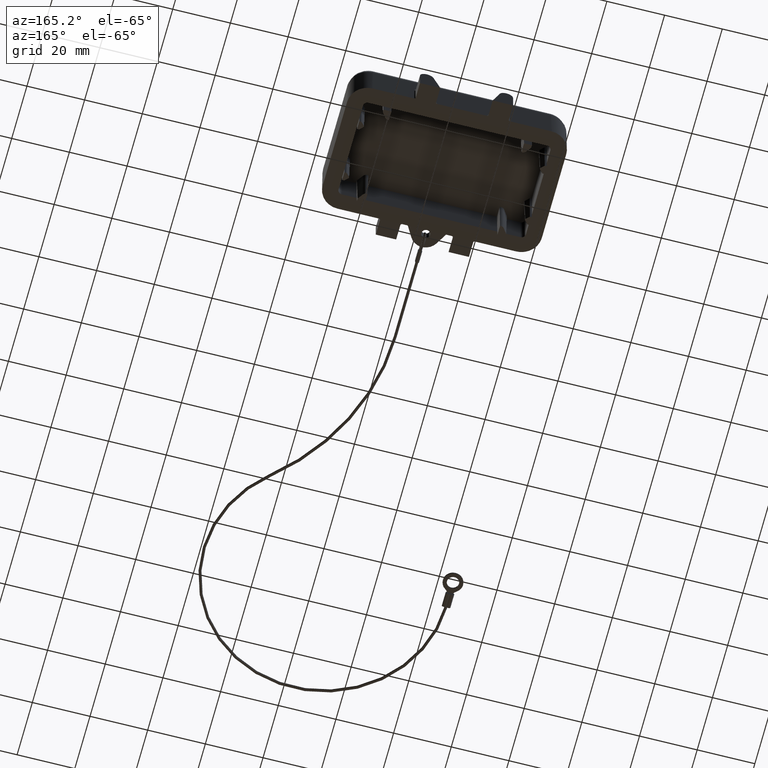
[diagram: clean part render]
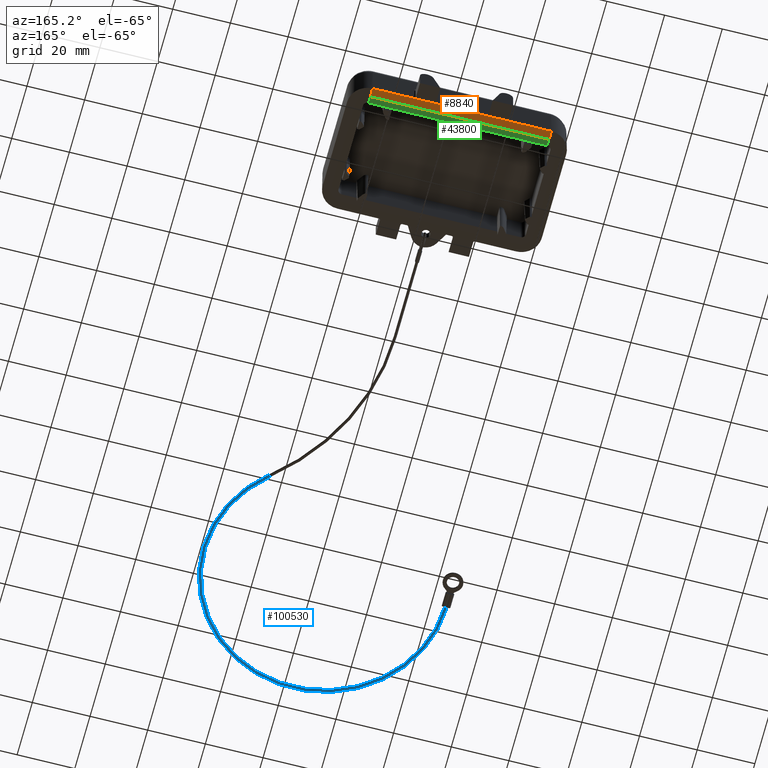
[diagram: same view with three faces highlighted in distinct colors, each labeled with its STEP entity id]
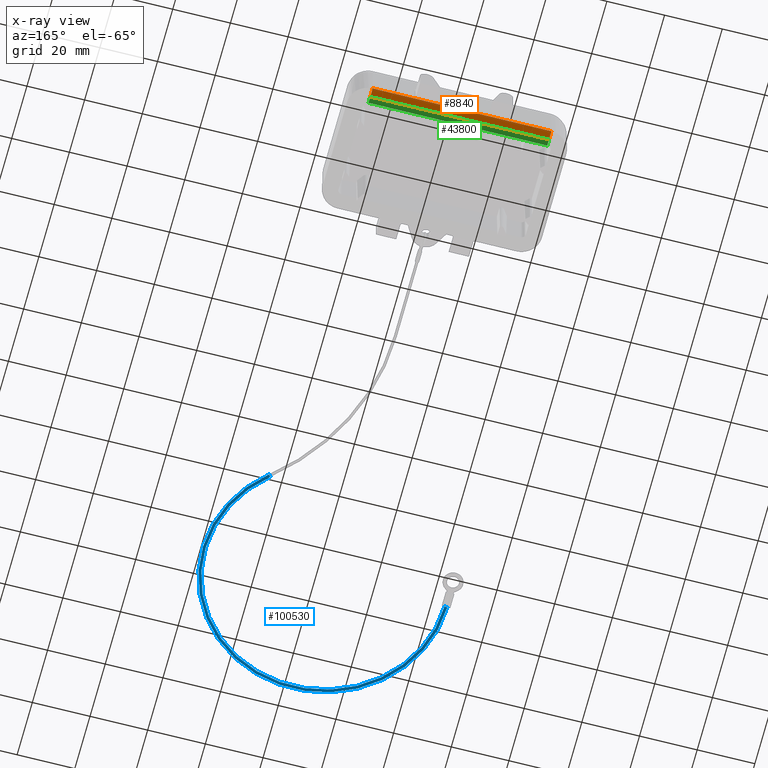
[diagram: x-ray of the same camera — body ghosted, the three highlighted faces saturated]
A machine part, auxiliary view with three faces highlighted in distinct colors.
The next image is the same camera in x-ray (body ghosted, the three faces saturated) — at least one of them is partly hidden behind the body in this view.
Their STEP definitions:

[orange] entity #8840 — the highlighted planar face has unit normal (0, -0.1736, 0.9848).
#7630=CARTESIAN_POINT('',(1.8465269273447,1.28941003565429,
3.50354241072919E-14));
#7640=DIRECTION('',(0.17364817766693,-2.61202785436219E-16,
-0.984807753012208));
#7650=DIRECTION('',(-0.984807753012208,2.02650691494374E-16,
-0.17364817766693));
#7660=AXIS2_PLACEMENT_3D('',#7630,#7640,#7650);
#7670=PLANE('',#7660);
#7680=CARTESIAN_POINT('',(-1.04901746035152,23.7311203632192,
-0.510562599389787));
#7690=CARTESIAN_POINT('',(-1.04901746035152,23.4201684141577,
-0.510562599389787));
#7700=CARTESIAN_POINT('',(-1.25501675077887,23.1873990009748,
-0.546885832298927));
#7710=CARTESIAN_POINT('',(-1.54677817191111,23.1686744028721,
-0.598331242774386));
#7720=(BOUNDED_CURVE() B_SPLINE_CURVE(3,(#7680,#7690,#7700,#7710),
.UNSPECIFIED.,.F.,.F.) B_SPLINE_CURVE_WITH_KNOTS((4,4),(0.,1.),
.UNSPECIFIED.) CURVE() GEOMETRIC_REPRESENTATION_ITEM() 
RATIONAL_B_SPLINE_CURVE((1.,0.805440818957785,0.805440818957785,1.)) 
REPRESENTATION_ITEM(''));
#7730=CARTESIAN_POINT('',(-1.04901746035152,23.7311203632192,
-0.510562599389787));
#7740=VERTEX_POINT('',#7730);
#7750=CARTESIAN_POINT('',(-1.05347307265534,23.6599201432686,
-0.511348244054528));
#7760=VERTEX_POINT('',#7750);
#7770=EDGE_CURVE('',#7740,#7760,#7720,.T.);
#7780=ORIENTED_EDGE('',*,*,#7770,.T.);
#7790=CARTESIAN_POINT('',(-1.04901746035151,55.7894100356543,
-0.510562599389794));
#7800=DIRECTION('',(-1.23719927907591E-16,-1.,2.43417098089204E-16));
#7810=VECTOR('',#7800,1.);
#7820=LINE('',#7790,#7810);
#7830=CARTESIAN_POINT('',(-1.04901746035161,40.8476997080894,
-0.510562599389807));
#7840=VERTEX_POINT('',#7830);
#7850=EDGE_CURVE('',#7840,#7740,#7820,.T.);
#7860=ORIENTED_EDGE('',*,*,#7850,.T.);
#7870=CARTESIAN_POINT('',(-1.04901746035152,40.8476997080894,
-0.510562599389791));
#7880=CARTESIAN_POINT('',(-1.04901746035152,41.1586516571509,
-0.510562599389791));
#7890=CARTESIAN_POINT('',(-1.25501675077887,41.3914210703338,
-0.546885832298932));
#7900=CARTESIAN_POINT('',(-1.5467781719111,41.4101456684365,
-0.59833124277439));
#7910=(BOUNDED_CURVE() B_SPLINE_CURVE(3,(#7870,#7880,#7890,#7900),
.UNSPECIFIED.,.F.,.F.) B_SPLINE_CURVE_WITH_KNOTS((4,4),(0.,1.),
.UNSPECIFIED.) CURVE() GEOMETRIC_REPRESENTATION_ITEM() 
RATIONAL_B_SPLINE_CURVE((1.,0.805440818957786,0.805440818957786,1.)) 
REPRESENTATION_ITEM(''));
#7920=CARTESIAN_POINT('',(-1.05347307265532,40.9188999280398,
-0.511348244054528));
#7930=VERTEX_POINT('',#7920);
#7940=EDGE_CURVE('',#7840,#7930,#7910,.T.);
#7950=ORIENTED_EDGE('',*,*,#7940,.F.);
#7960=CARTESIAN_POINT('',(-1.05347307265536,0.,-0.511348244054524));
#7970=DIRECTION('',(9.39461072575209E-16,1.,-9.95799250102962E-17));
#7980=VECTOR('',#7970,1.);
#7990=LINE('',#7960,#7980);
#8000=CARTESIAN_POINT('',(-1.05347307265531,48.8727588053959,
-0.511348244054528));
#8010=VERTEX_POINT('',#8000);
#8020=EDGE_CURVE('',#7930,#8010,#7990,.T.);
#8030=ORIENTED_EDGE('',*,*,#8020,.F.);
#8040=CARTESIAN_POINT('',(-1.04901746035152,48.9394100356544,
-0.510562599389793));
#8050=CARTESIAN_POINT('',(-1.04901746035152,48.6465168168409,
-0.510562599389793));
#8060=CARTESIAN_POINT('',(-1.25581391311938,48.4394100356544,
-0.54702639352757));
#8070=CARTESIAN_POINT('',(-1.54826826127433,48.4394100356544,
-0.598593985732796));
#8080=(BOUNDED_CURVE() B_SPLINE_CURVE(3,(#8040,#8050,#8060,#8070),
.UNSPECIFIED.,.F.,.F.) B_SPLINE_CURVE_WITH_KNOTS((4,4),(0.,1.),
.UNSPECIFIED.) CURVE() GEOMETRIC_REPRESENTATION_ITEM() 
RATIONAL_B_SPLINE_CURVE((1.,0.804737854124365,0.804737854124365,1.)) 
REPRESENTATION_ITEM(''));
#8090=CARTESIAN_POINT('',(-1.04901746035161,48.9394100356544,
-0.51056259938981));
#8100=VERTEX_POINT('',#8090);
#8110=EDGE_CURVE('',#8100,#8010,#8080,.T.);
#8120=ORIENTED_EDGE('',*,*,#8110,.T.);
#8130=CARTESIAN_POINT('',(-1.04901746035151,55.7894100356543,
-0.510562599389794));
#8140=DIRECTION('',(-1.23719927907591E-16,-1.,2.43417098089204E-16));
#8150=VECTOR('',#8140,1.);
#8160=LINE('',#8130,#8150);
#8170=CARTESIAN_POINT('',(-1.04901746035152,63.2852209619013,
-0.510562599389798));
#8180=VERTEX_POINT('',#8170);
#8190=EDGE_CURVE('',#8180,#8100,#8160,.T.);
#8200=ORIENTED_EDGE('',*,*,#8190,.T.);
#8210=CARTESIAN_POINT('',(5.9404937525679,63.2954432104311,
0.721876809412246));
#8220=DIRECTION('',(0.17364817766693,-2.61202785436219E-16,
-0.984807753012208));
#8230=DIRECTION('',(-0.983434099108648,-0.0527990896377248,
-0.173405965421577));
#8240=AXIS2_PLACEMENT_3D('',#8210,#8220,#8230);
#8250=ELLIPSE('',#8240,7.0976059241781,7.);
#8260=CARTESIAN_POINT('',(-1.0490162088732,63.2894100356543,
-0.510562378720403));
#8270=VERTEX_POINT('',#8260);
#8280=EDGE_CURVE('',#8180,#8270,#8250,.T.);
#8290=ORIENTED_EDGE('',*,*,#8280,.F.);
#8300=CARTESIAN_POINT('',(1.84652692734472,63.2894100356543,
2.12686586019399E-14));
#8310=DIRECTION('',(-0.984807753012208,8.42664101576434E-16,
-0.17364817766693));
#8320=VECTOR('',#8310,1.);
#8330=LINE('',#8300,#8320);
#8340=CARTESIAN_POINT('',(1.84652692734477,63.2894100356543,
8.01316783311127E-15));
#8350=VERTEX_POINT('',#8340);
#8360=EDGE_CURVE('',#8350,#8270,#8330,.T.);
#8370=ORIENTED_EDGE('',*,*,#8360,.T.);
#8380=CARTESIAN_POINT('',(1.84652692734478,55.7894100356543,
8.76001727068849E-15));
#8390=DIRECTION('',(4.4960235291627E-16,-1.,9.95799250102959E-17));
#8400=VECTOR('',#8390,1.);
#8410=LINE('',#8380,#8400);
#8420=CARTESIAN_POINT('',(1.84652692734486,1.28941003565431,
7.50740004312236E-15));
#8430=VERTEX_POINT('',#8420);
#8440=EDGE_CURVE('',#8350,#8430,#8410,.T.);
#8450=ORIENTED_EDGE('',*,*,#8440,.F.);
#8460=CARTESIAN_POINT('',(1.8465269273447,1.28941003565429,
3.50354241072919E-14));
#8470=DIRECTION('',(-0.984807753012208,2.02650691494374E-16,
-0.17364817766693));
#8480=VECTOR('',#8470,1.);
#8490=LINE('',#8460,#8480);
#8500=CARTESIAN_POINT('',(-1.0490162088732,1.28941003565429,
-0.510562378720387));
#8510=VERTEX_POINT('',#8500);
#8520=EDGE_CURVE('',#8430,#8510,#8490,.T.);
#8530=ORIENTED_EDGE('',*,*,#8520,.F.);
#8540=CARTESIAN_POINT('',(5.9404937525679,1.28337686087753,
0.721876809412262));
#8550=DIRECTION('',(0.17364817766693,-2.61202785436219E-16,
-0.984807753012208));
#8560=DIRECTION('',(-0.983434099108648,0.0527990896377267,
-0.173405965421577));
#8570=AXIS2_PLACEMENT_3D('',#8540,#8550,#8560);
#8580=ELLIPSE('',#8570,7.0976059241781,7.);
#8590=CARTESIAN_POINT('',(-1.04901746035152,1.29359910940731,
-0.510562599389781));
#8600=VERTEX_POINT('',#8590);
#8610=EDGE_CURVE('',#8510,#8600,#8580,.T.);
#8620=ORIENTED_EDGE('',*,*,#8610,.F.);
#8630=CARTESIAN_POINT('',(-1.04901746035152,15.6394100356536,
-0.510562599389785));
#8640=VERTEX_POINT('',#8630);
#8650=EDGE_CURVE('',#8640,#8600,#8160,.T.);
#8660=ORIENTED_EDGE('',*,*,#8650,.T.);
#8670=CARTESIAN_POINT('',(-1.04901746035152,15.6394100356536,
-0.510562599389785));
#8680=CARTESIAN_POINT('',(-1.04901746035152,15.9323032544671,
-0.510562599389785));
#8690=CARTESIAN_POINT('',(-1.25581391311938,16.1394100356536,
-0.547026393527562));
#8700=CARTESIAN_POINT('',(-1.54826826127433,16.1394100356536,
-0.598593985732788));
#8710=(BOUNDED_CURVE() B_SPLINE_CURVE(3,(#8670,#8680,#8690,#8700),
.UNSPECIFIED.,.F.,.F.) B_SPLINE_CURVE_WITH_KNOTS((4,4),(0.,1.),
.UNSPECIFIED.) CURVE() GEOMETRIC_REPRESENTATION_ITEM() 
RATIONAL_B_SPLINE_CURVE((1.,0.804737854124365,0.804737854124365,1.)) 
REPRESENTATION_ITEM(''));
#8720=CARTESIAN_POINT('',(-1.05347307265534,15.7060612659122,
-0.511348244054526));
#8730=VERTEX_POINT('',#8720);
#8740=EDGE_CURVE('',#8640,#8730,#8710,.T.);
#8750=ORIENTED_EDGE('',*,*,#8740,.F.);
#8760=CARTESIAN_POINT('',(-1.05347307265535,0.,-0.511348244054522));
#8770=DIRECTION('',(-2.44929359829471E-16,-1.,2.22044604925031E-16));
#8780=VECTOR('',#8770,1.);
#8790=LINE('',#8760,#8780);
#8800=EDGE_CURVE('',#7760,#8730,#8790,.T.);
#8810=ORIENTED_EDGE('',*,*,#8800,.T.);
#8820=EDGE_LOOP('',(#8810,#8750,#8660,#8620,#8530,#8450,#8370,#8290,
#8200,#8120,#8030,#7950,#7860,#7780));
#8830=FACE_OUTER_BOUND('',#8820,.T.);
#8840=ADVANCED_FACE('',(#8830),#7670,.F.);

[blue] entity #100530 — the highlighted toroidal blend (fillet) surface has major radius 42 mm and minor (blend) radius 0.5 mm.
#99880=CARTESIAN_POINT('',(147.388517435785,5.07629528155594,
-2.19999999999997));
#99890=VERTEX_POINT('',#99880);
#99980=CARTESIAN_POINT('',(146.633528652856,4.4205575766379,
-2.19999999999997));
#99990=VERTEX_POINT('',#99980);
#100020=CARTESIAN_POINT('',(147.011023044321,4.74842642909692,
-2.19999999999997));
#100030=DIRECTION('',(-0.655737704918033,0.754988782929145,
-1.45603019622972E-16));
#100040=DIRECTION('',(-0.754988782929145,-0.655737704918033,
-1.67641186028332E-16));
#100050=AXIS2_PLACEMENT_3D('',#100020,#100030,#100040);
#100060=CIRCLE('',#100050,0.5);
#100190=CARTESIAN_POINT('',(178.720551927345,32.2894100356543,
-2.19999999999996));
#100200=DIRECTION('',(-2.22044604925031E-16,3.20474742746036E-31,1.));
#100210=DIRECTION('',(-0.754988782929145,-0.655737704918032,
-1.67641186028332E-16));
#100220=AXIS2_PLACEMENT_3D('',#100190,#100200,#100210);
#100230=TOROIDAL_SURFACE('',#100220,42.,0.5);
#100240=CARTESIAN_POINT('',(178.720551927345,32.2894100356543,
-2.19999999999996));
#100250=DIRECTION('',(-2.22044604925031E-16,3.20474742746036E-31,1.));
#100260=DIRECTION('',(-0.754988782929145,-0.655737704918032,
-1.67641186028332E-16));
#100270=AXIS2_PLACEMENT_3D('',#100240,#100250,#100260);
#100280=CIRCLE('',#100270,42.5);
#100290=CARTESIAN_POINT('',(178.720551927345,74.7894100356543,
-2.19999999999996));
#100300=VERTEX_POINT('',#100290);
#100310=EDGE_CURVE('',#99990,#100300,#100280,.T.);
#100320=ORIENTED_EDGE('',*,*,#100310,.T.);
#100330=EDGE_CURVE('',#99990,#99890,#100060,.T.);
#100340=ORIENTED_EDGE('',*,*,#100330,.F.);
#100350=CARTESIAN_POINT('',(178.720551927345,32.2894100356543,
-2.19999999999996));
#100360=DIRECTION('',(-2.22044604925031E-16,3.20474742746036E-31,1.));
#100370=DIRECTION('',(-0.754988782929145,-0.655737704918033,
-1.67641186028332E-16));
#100380=AXIS2_PLACEMENT_3D('',#100350,#100360,#100370);
#100390=CIRCLE('',#100380,41.5);
#100400=CARTESIAN_POINT('',(178.720551927345,73.7894100356543,
-2.19999999999996));
#100410=VERTEX_POINT('',#100400);
#100420=EDGE_CURVE('',#99890,#100410,#100390,.T.);
#100430=ORIENTED_EDGE('',*,*,#100420,.F.);
#100440=CARTESIAN_POINT('',(178.720551927345,74.2894100356543,
-2.19999999999996));
#100450=DIRECTION('',(-1.,-8.06112477587981E-18,-2.22044604925031E-16));
#100460=DIRECTION('',(-8.06112477587981E-18,1.,-3.22264672012148E-31));
#100470=AXIS2_PLACEMENT_3D('',#100440,#100450,#100460);
#100480=CIRCLE('',#100470,0.5);
#100490=EDGE_CURVE('',#100410,#100300,#100480,.T.);
#100500=ORIENTED_EDGE('',*,*,#100490,.F.);
#100510=EDGE_LOOP('',(#100500,#100430,#100340,#100320));
#100520=FACE_OUTER_BOUND('',#100510,.T.);
#100530=ADVANCED_FACE('',(#100520),#100230,.T.);

[green] entity #43800 — the highlighted planar face has unit normal (0, 0.1736, 0.9848).
#920=CARTESIAN_POINT('',(4.44652692734461,9.33232244264254,
-0.458450149841963));
#930=VERTEX_POINT('',#920);
#960=CARTESIAN_POINT('',(0.,9.31863692697069,0.325592517895601));
#970=DIRECTION('',(0.984803229228126,0.00303102629254527,
-0.173647380001742));
#980=VECTOR('',#970,1.);
#990=LINE('',#960,#980);
#1000=CARTESIAN_POINT('',(4.45046058879616,9.33233454966142,
-0.459143760488844));
#1010=VERTEX_POINT('',#1000);
#1020=EDGE_CURVE('',#930,#1010,#990,.T.);
#8340=CARTESIAN_POINT('',(1.84652692734477,63.2894100356543,
8.01316783311127E-15));
#8350=VERTEX_POINT('',#8340);
#8380=CARTESIAN_POINT('',(1.84652692734478,55.7894100356543,
8.76001727068849E-15));
#8390=DIRECTION('',(4.4960235291627E-16,-1.,9.95799250102959E-17));
#8400=VECTOR('',#8390,1.);
#8410=LINE('',#8380,#8400);
#8420=CARTESIAN_POINT('',(1.84652692734486,1.28941003565431,
7.50740004312236E-15));
#8430=VERTEX_POINT('',#8420);
#8440=EDGE_CURVE('',#8350,#8430,#8410,.T.);
#27670=CARTESIAN_POINT('',(4.45053913546751,1.28941003565431,
-0.459157610386243));
#27680=VERTEX_POINT('',#27670);
#27710=CARTESIAN_POINT('',(5.95290286331959,1.29578597162923,
-0.724064870444317));
#27720=DIRECTION('',(-0.17364817766693,-1.76139711453188E-16,
-0.984807753012208));
#27730=DIRECTION('',(-0.983680573780415,-0.0478312193157662,
0.173449425556271));
#27740=AXIS2_PLACEMENT_3D('',#27710,#27720,#27730);
#27750=ELLIPSE('',#27740,1.52560348459942,1.5);
#27760=CARTESIAN_POINT('',(4.45053392709101,1.29335991999695,
-0.459156692008958));
#27770=VERTEX_POINT('',#27760);
#27780=EDGE_CURVE('',#27680,#27770,#27750,.T.);
#31390=CARTESIAN_POINT('',(4.45053392709101,58.082334775382,
-0.459156692008969));
#31400=VERTEX_POINT('',#31390);
#31430=CARTESIAN_POINT('',(4.45053392709101,0.,-0.459156692008944));
#31440=DIRECTION('',(-1.56326648648799E-18,-1.,1.79132596479049E-16));
#31450=VECTOR('',#31440,1.);
#31460=LINE('',#31430,#31450);
#31470=CARTESIAN_POINT('',(4.45053392709101,63.2854601513116,
-0.459156692008969));
#31480=VERTEX_POINT('',#31470);
#31490=EDGE_CURVE('',#31480,#31400,#31460,.T.);
#33830=CARTESIAN_POINT('',(4.44652692734461,58.0823224426426,
-0.458450149841971));
#33840=VERTEX_POINT('',#33830);
#33870=CARTESIAN_POINT('',(0.,58.0686369269707,0.325592517895592));
#33880=DIRECTION('',(0.984803229228126,0.00303102629254527,
-0.173647380001742));
#33890=VECTOR('',#33880,1.);
#33900=LINE('',#33870,#33890);
#33910=EDGE_CURVE('',#33840,#31400,#33900,.T.);
#40750=CARTESIAN_POINT('',(4.4505339270911,55.7894100356543,
-0.459156692008968));
#40760=DIRECTION('',(1.23346323166843E-16,1.,-2.00606235164944E-16));
#40770=VECTOR('',#40760,1.);
#40780=LINE('',#40750,#40770);
#40790=CARTESIAN_POINT('',(4.45053392709101,6.49648529592661,
-0.459156692008959));
#40800=VERTEX_POINT('',#40790);
#40810=EDGE_CURVE('',#27770,#40800,#40780,.T.);
#41010=CARTESIAN_POINT('',(1.8465269273447,1.28941003565431,
3.14044724028921E-14));
#41020=DIRECTION('',(0.984807753012208,-2.79765973506385E-16,
-0.17364817766693));
#41030=VECTOR('',#41020,1.);
#41040=LINE('',#41010,#41030);
#41050=EDGE_CURVE('',#8430,#27680,#41040,.T.);
#43030=CARTESIAN_POINT('',(4.44652692734461,0.,-0.458450149841961));
#43040=DIRECTION('',(0.,1.,-1.78856950419443E-16));
#43050=VECTOR('',#43040,1.);
#43060=LINE('',#43030,#43050);
#43070=CARTESIAN_POINT('',(4.44652692734461,6.49649762866601,
-0.458450149841963));
#43080=VERTEX_POINT('',#43070);
#43090=EDGE_CURVE('',#43080,#930,#43060,.T.);
#43220=CARTESIAN_POINT('',(1.84652692734472,63.2894100356543,
1.76377068975402E-14));
#43230=DIRECTION('',(-0.17364817766693,-1.76139711453188E-16,
-0.984807753012208));
#43240=DIRECTION('',(-0.984807753012208,2.79765973506385E-16,
0.17364817766693));
#43250=AXIS2_PLACEMENT_3D('',#43220,#43230,#43240);
#43260=PLANE('',#43250);
#43270=ORIENTED_EDGE('',*,*,#1020,.T.);
#43280=ORIENTED_EDGE('',*,*,#43090,.T.);
#43290=CARTESIAN_POINT('',(0.,6.51018314433786,0.325592517895602));
#43300=DIRECTION('',(-0.984803229228126,0.00303102629254527,
0.173647380001742));
#43310=VECTOR('',#43300,1.);
#43320=LINE('',#43290,#43310);
#43330=EDGE_CURVE('',#40800,#43080,#43320,.T.);
#43340=ORIENTED_EDGE('',*,*,#43330,.T.);
#43350=ORIENTED_EDGE('',*,*,#40810,.T.);
#43360=ORIENTED_EDGE('',*,*,#27780,.T.);
#43370=ORIENTED_EDGE('',*,*,#41050,.T.);
#43380=ORIENTED_EDGE('',*,*,#8440,.T.);
#43390=CARTESIAN_POINT('',(1.84652692734472,63.2894100356543,
2.11904205763407E-14));
#43400=DIRECTION('',(0.984807753012208,-2.79765973506385E-16,
-0.17364817766693));
#43410=VECTOR('',#43400,4.16324910873156);
#43420=LINE('',#43390,#43410);
#43430=CARTESIAN_POINT('',(4.45053913546722,63.2894100355452,
-0.459157610386202));
#43440=VERTEX_POINT('',#43430);
#43450=EDGE_CURVE('',#8350,#43440,#43420,.T.);
#43460=ORIENTED_EDGE('',*,*,#43450,.F.);
#43470=CARTESIAN_POINT('',(5.95290286331959,63.2830340996794,
-0.724064870444329));
#43480=DIRECTION('',(-0.17364817766693,-1.76139711453188E-16,
-0.984807753012208));
#43490=DIRECTION('',(-0.983680573780415,0.0478312193157654,
0.173449425556271));
#43500=AXIS2_PLACEMENT_3D('',#43470,#43480,#43490);
#43510=ELLIPSE('',#43500,1.52560348459942,1.5);
#43520=EDGE_CURVE('',#31480,#43440,#43510,.T.);
#43530=ORIENTED_EDGE('',*,*,#43520,.T.);
#43540=ORIENTED_EDGE('',*,*,#31490,.F.);
#43550=ORIENTED_EDGE('',*,*,#33910,.T.);
#43560=CARTESIAN_POINT('',(4.44652692734461,0.,-0.458450149841961));
#43570=DIRECTION('',(0.,1.,-1.78856950419443E-16));
#43580=VECTOR('',#43570,1.);
#43590=LINE('',#43560,#43580);
#43600=CARTESIAN_POINT('',(4.44652692734461,55.246497628666,
-0.458450149841971));
#43610=VERTEX_POINT('',#43600);
#43620=EDGE_CURVE('',#43610,#33840,#43590,.T.);
#43630=ORIENTED_EDGE('',*,*,#43620,.T.);
#43640=CARTESIAN_POINT('',(0.,55.2601831443379,0.325592517895593));
#43650=DIRECTION('',(0.984803229228126,-0.00303102629254527,
-0.173647380001742));
#43660=VECTOR('',#43650,1.);
#43670=LINE('',#43640,#43660);
#43680=CARTESIAN_POINT('',(4.45046058879614,55.2464855216471,
-0.459143760488848));
#43690=VERTEX_POINT('',#43680);
#43700=EDGE_CURVE('',#43610,#43690,#43670,.T.);
#43710=ORIENTED_EDGE('',*,*,#43700,.F.);
#43720=CARTESIAN_POINT('',(4.45046058879617,0.,-0.459143760488843));
#43730=DIRECTION('',(3.67394039744206E-16,1.,-9.95799250102961E-17));
#43740=VECTOR('',#43730,1.);
#43750=LINE('',#43720,#43740);
#43760=EDGE_CURVE('',#1010,#43690,#43750,.T.);
#43770=ORIENTED_EDGE('',*,*,#43760,.T.);
#43780=EDGE_LOOP('',(#43770,#43710,#43630,#43550,#43540,#43530,#43460,
#43380,#43370,#43360,#43350,#43340,#43280,#43270));
#43790=FACE_OUTER_BOUND('',#43780,.T.);
#43800=ADVANCED_FACE('',(#43790),#43260,.F.);